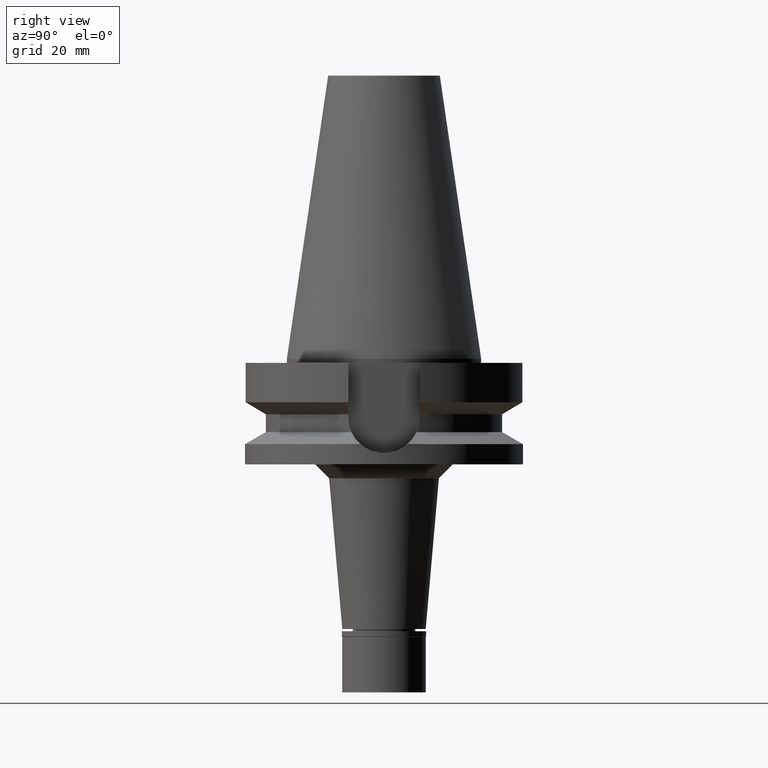
[diagram: clean part render]
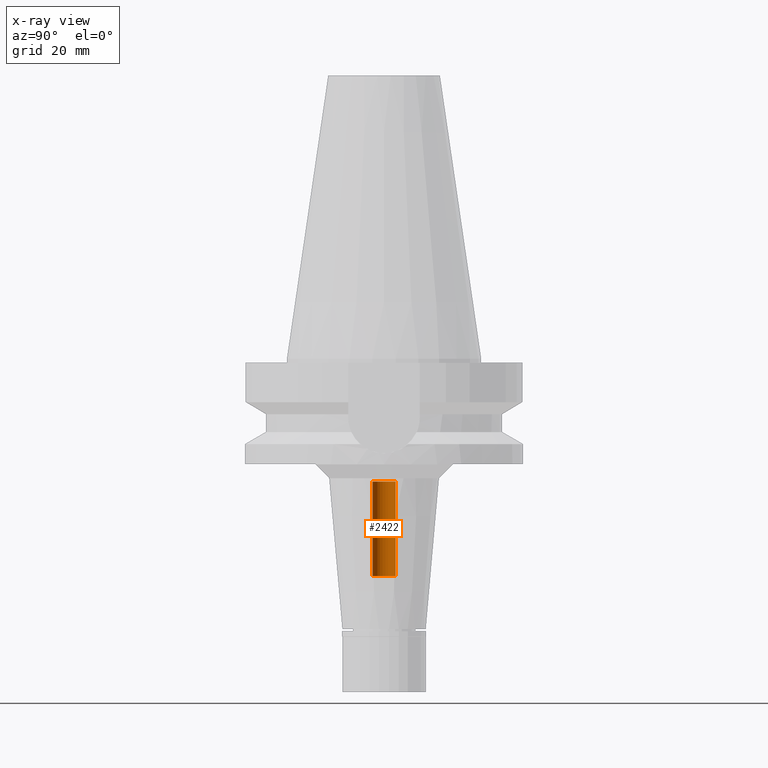
[diagram: x-ray — body ghosted, one internal face saturated and labeled with its STEP entity id]
A machine part, right view, then the same camera in x-ray: the body is ghosted and one INTERNAL B-rep face — a face not visible from any outside direction — is saturated and labeled: STEP entity #2422.
In plain terms, the highlighted cylindrical surface (edge-blend (fillet) strip) has radius 4.2 mm, axis along (0, 0, -1).
Its self-contained STEP definition (entity closure, byte-faithful):
#56 = DIRECTION ( 'NONE',  ( 0.0000000000000000000, -1.000000000000000000, 0.0000000000000000000 ) ) ;
#68 = AXIS2_PLACEMENT_3D ( 'NONE', #2246, #586, #56 ) ;
#185 = EDGE_CURVE ( 'NONE', #1612, #913, #873, .T. ) ;
#320 = DIRECTION ( 'NONE',  ( 0.0000000000000000000, -1.000000000000000000, 0.0000000000000000000 ) ) ;
#327 = FACE_OUTER_BOUND ( 'NONE', #2220, .T. ) ;
#452 = CARTESIAN_POINT ( 'NONE',  ( 0.0000000000000000000, -4.200000000000000178, -44.20000000000000284 ) ) ;
#586 = DIRECTION ( 'NONE',  ( 0.0000000000000000000, 0.0000000000000000000, -1.000000000000000000 ) ) ;
#628 = VECTOR ( 'NONE', #2156, 1000.000000000000000 ) ;
#873 = CIRCLE ( 'NONE', #1483, 4.200000000000000178 ) ;
#913 = VERTEX_POINT ( 'NONE', #1194 ) ;
#995 = VERTEX_POINT ( 'NONE', #452 ) ;
#1074 = CARTESIAN_POINT ( 'NONE',  ( 0.0000000000000000000, 2.603048003927999965E-14, -44.20000000000000284 ) ) ;
#1142 = DIRECTION ( 'NONE',  ( 0.0000000000000000000, 0.0000000000000000000, 1.000000000000000000 ) ) ;
#1181 = LINE ( 'NONE', #2440, #628 ) ;
#1194 = CARTESIAN_POINT ( 'NONE',  ( 0.0000000000000000000, 4.200000000000000178, -78.29999999999999716 ) ) ;
#1265 = CARTESIAN_POINT ( 'NONE',  ( 0.0000000000000000000, 4.200000000000000178, -44.20000000000000284 ) ) ;
#1306 = DIRECTION ( 'NONE',  ( 0.0000000000000000000, 1.000000000000000000, 0.0000000000000000000 ) ) ;
#1345 = CIRCLE ( 'NONE', #2688, 4.200000000000000178 ) ;
#1382 = CARTESIAN_POINT ( 'NONE',  ( 0.0000000000000000000, -4.200000000000000178, -78.29999999999999716 ) ) ;
#1483 = AXIS2_PLACEMENT_3D ( 'NONE', #2527, #2995, #320 ) ;
#1503 = VECTOR ( 'NONE', #1142, 1000.000000000000000 ) ;
#1612 = VERTEX_POINT ( 'NONE', #2455 ) ;
#1635 = LINE ( 'NONE', #1382, #1503 ) ;
#1712 = EDGE_CURVE ( 'NONE', #913, #1935, #1181, .T. ) ;
#1796 = ORIENTED_EDGE ( 'NONE', *, *, #1712, .T. ) ;
#1935 = VERTEX_POINT ( 'NONE', #1265 ) ;
#1953 = ORIENTED_EDGE ( 'NONE', *, *, #2885, .F. ) ;
#2056 = ORIENTED_EDGE ( 'NONE', *, *, #2441, .T. ) ;
#2156 = DIRECTION ( 'NONE',  ( 0.0000000000000000000, 0.0000000000000000000, 1.000000000000000000 ) ) ;
#2220 = EDGE_LOOP ( 'NONE', ( #2056, #1953, #2407, #1796 ) ) ;
#2246 = CARTESIAN_POINT ( 'NONE',  ( 0.0000000000000000000, 2.603048003927999965E-14, 112.5550000000000068 ) ) ;
#2407 = ORIENTED_EDGE ( 'NONE', *, *, #185, .T. ) ;
#2422 = ADVANCED_FACE ( 'NONE', ( #327 ), #2792, .F. ) ;
#2440 = CARTESIAN_POINT ( 'NONE',  ( 0.0000000000000000000, 4.200000000000000178, -78.29999999999999716 ) ) ;
#2441 = EDGE_CURVE ( 'NONE', #1935, #995, #1345, .T. ) ;
#2455 = CARTESIAN_POINT ( 'NONE',  ( 0.0000000000000000000, -4.200000000000000178, -78.29999999999999716 ) ) ;
#2527 = CARTESIAN_POINT ( 'NONE',  ( 0.0000000000000000000, 2.603048003927999965E-14, -78.29999999999999716 ) ) ;
#2549 = DIRECTION ( 'NONE',  ( 0.0000000000000000000, 0.0000000000000000000, 1.000000000000000000 ) ) ;
#2688 = AXIS2_PLACEMENT_3D ( 'NONE', #1074, #2549, #1306 ) ;
#2792 = CYLINDRICAL_SURFACE ( 'NONE', #68, 4.200000000000000178 ) ;
#2885 = EDGE_CURVE ( 'NONE', #1612, #995, #1635, .T. ) ;
#2995 = DIRECTION ( 'NONE',  ( 0.0000000000000000000, 0.0000000000000000000, -1.000000000000000000 ) ) ;